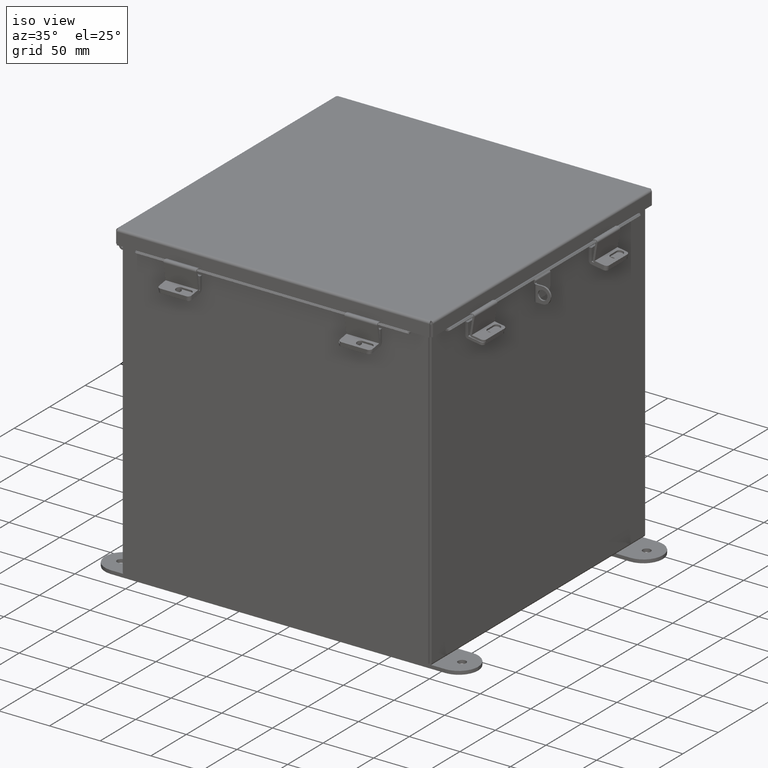
[diagram: clean part render]
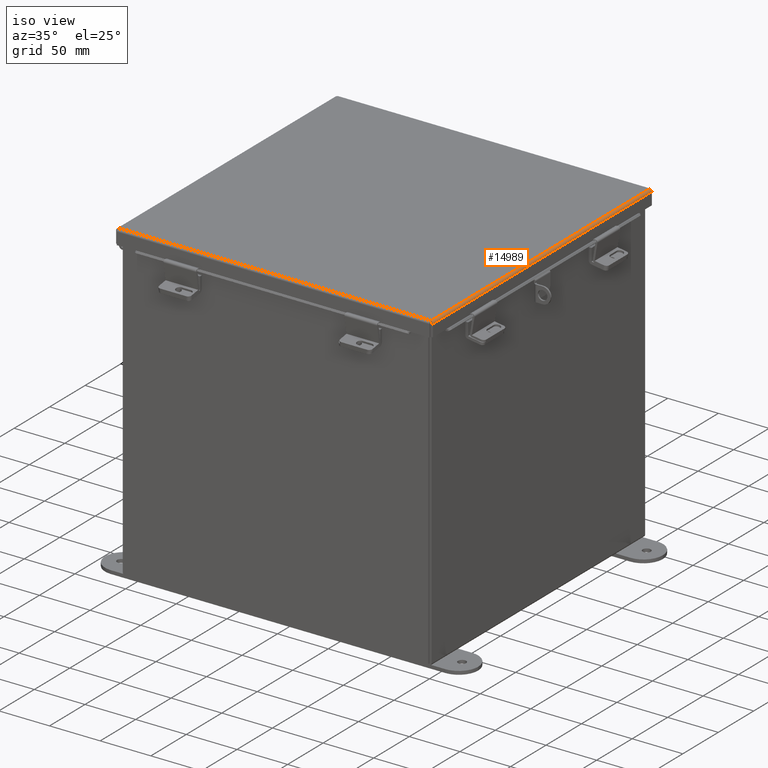
[diagram: same view with one face highlighted and labeled with its STEP entity id]
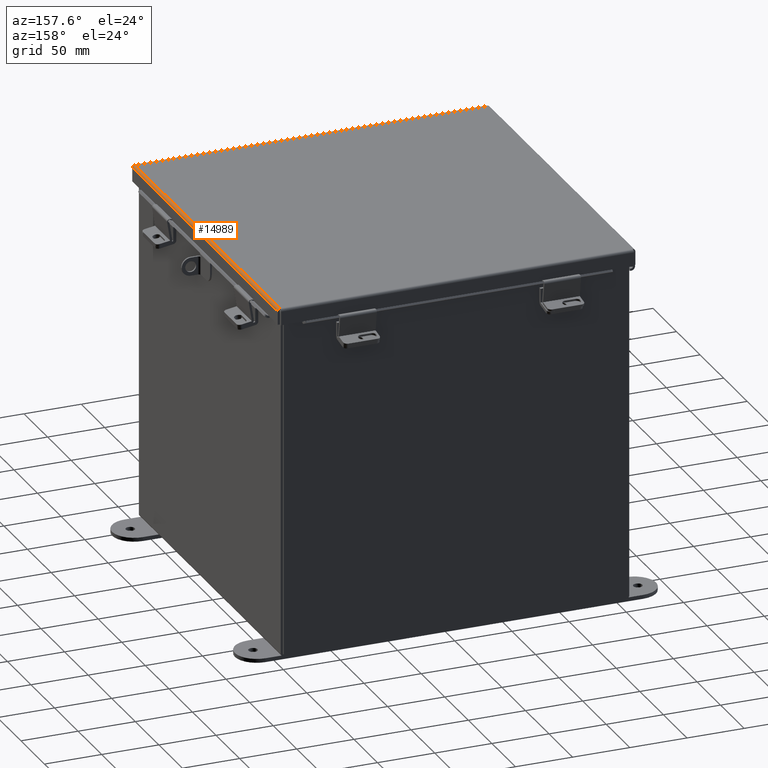
[diagram: same view with one face highlighted and labeled with its STEP entity id]
A machine part, iso view. The second image highlights one B-rep face of the part: STEP entity #14989.
A second angle (auxiliary view) of the same face is appended — the face is thin or edge-on in the first view.
In plain terms, the highlighted cylindrical surface (edge-blend (fillet) strip) has radius 2.2276 mm, axis along (-0, -1, 0).
Its self-contained STEP definition (entity closure, byte-faithful):
#234 = B_SPLINE_CURVE_WITH_KNOTS ( 'NONE', 3,
 ( #15889, #9786, #11045, #3640, #12294, #4906, #13557, #6136, #14763, #7390 ),
 .UNSPECIFIED., .F., .F.,
 ( 4, 2, 2, 2, 4 ),
 ( 0.0000000000000000000, 0.2500000000000000000, 0.5000000000000000000, 0.7500000000000000000, 1.000000000000000000 ),
 .UNSPECIFIED. ) ;
#398 = CARTESIAN_POINT ( 'NONE',  ( -6.156250000000000000, 6.074478932188137400, 0.01300000000000010700 ) ) ;
#1409 = B_SPLINE_CURVE_WITH_KNOTS ( 'NONE', 3,
 ( #8540, #7306, #11026, #3614, #12271, #4881, #13534, #6108, #14744, #7367 ),
 .UNSPECIFIED., .F., .F.,
 ( 4, 2, 2, 2, 4 ),
 ( 0.0000000000000000000, 0.2500000000000000000, 0.5000000000000000000, 0.7500000000000000000, 1.000000000000000000 ),
 .UNSPECIFIED. ) ;
#1517 = VERTEX_POINT ( 'NONE', #3948 ) ;
#1553 = VERTEX_POINT ( 'NONE', #398 ) ;
#1562 = FACE_OUTER_BOUND ( 'NONE', #2697, .T. ) ;
#1818 = DIRECTION ( 'NONE',  ( -1.000000000000000000, 0.0000000000000000000, -4.477801015840783100E-015 ) ) ;
#2677 = CARTESIAN_POINT ( 'NONE',  ( -6.068550000000000100, -6.074478932188137400, -0.07470000000000015500 ) ) ;
#2697 = EDGE_LOOP ( 'NONE', ( #11966, #3435, #15746, #7995 ) ) ;
#3026 = CARTESIAN_POINT ( 'NONE',  ( -6.068550000000000100, -6.074478932188137400, 0.01300000000000010700 ) ) ;
#3435 = ORIENTED_EDGE ( 'NONE', *, *, #10239, .F. ) ;
#3614 = CARTESIAN_POINT ( 'NONE',  ( -6.112717384578525400, 6.070526310729377400, -0.06363106625866844800 ) ) ;
#3640 = CARTESIAN_POINT ( 'NONE',  ( -6.145181066258666100, -6.072502621458756500, -0.03116738457852804100 ) ) ;
#3792 = CARTESIAN_POINT ( 'NONE',  ( -6.068550000000000100, -6.068550000000000100, -0.07470000000000015500 ) ) ;
#3948 = CARTESIAN_POINT ( 'NONE',  ( -6.068550000000000100, 6.068550000000000100, -0.07470000000000015500 ) ) ;
#4173 = VECTOR ( 'NONE', #10061, 39.37007874015748100 ) ;
#4291 = DIRECTION ( 'NONE',  ( 8.841798118918014500E-031, -1.000000000000000000, -8.874685183736382800E-031 ) ) ;
#4436 = CYLINDRICAL_SURFACE ( 'NONE', #8342, 0.08770000000000026400 ) ;
#4554 = LINE ( 'NONE', #2677, #4173 ) ;
#4881 = CARTESIAN_POINT ( 'NONE',  ( -6.138680782078321100, 6.072008543776413500, -0.04089574734180016800 ) ) ;
#4889 = CARTESIAN_POINT ( 'NONE',  ( -6.156250000000000000, 6.156249999999998200, 0.01300000000000010700 ) ) ;
#4906 = CARTESIAN_POINT ( 'NONE',  ( -6.122445747341799000, -6.071020388411725800, -0.05713078207832048700 ) ) ;
#5652 = EDGE_CURVE ( 'NONE', #1517, #1553, #1409, .T. ) ;
#5990 = EDGE_CURVE ( 'NONE', #12447, #1553, #6999, .T. ) ;
#6108 = CARTESIAN_POINT ( 'NONE',  ( -6.153967403743811500, 6.073490776823449600, -0.009955289458309110300 ) ) ;
#6136 = CARTESIAN_POINT ( 'NONE',  ( -6.091505289458309500, -6.069538155364689700, -0.07241740374381128200 ) ) ;
#6999 = LINE ( 'NONE', #4889, #10265 ) ;
#7306 = CARTESIAN_POINT ( 'NONE',  ( -6.080029903154992300, 6.069044077682344900, -0.07469999999999998900 ) ) ;
#7367 = CARTESIAN_POINT ( 'NONE',  ( -6.156250000000000000, 6.074478932188137400, 0.01300000000000010700 ) ) ;
#7390 = CARTESIAN_POINT ( 'NONE',  ( -6.068550000000000100, -6.068550000000000100, -0.07470000000000015500 ) ) ;
#7995 = ORIENTED_EDGE ( 'NONE', *, *, #5652, .F. ) ;
#8342 = AXIS2_PLACEMENT_3D ( 'NONE', #3026, #4291, #1818 ) ;
#8540 = CARTESIAN_POINT ( 'NONE',  ( -6.068550000000000100, 6.068550000000000100, -0.07470000000000015500 ) ) ;
#9786 = CARTESIAN_POINT ( 'NONE',  ( -6.156249999999999100, -6.073984854505791700, 0.001520096845007029300 ) ) ;
#10061 = DIRECTION ( 'NONE',  ( -8.841798118918014500E-031, 1.000000000000000000, 8.874685183736382800E-031 ) ) ;
#10239 = EDGE_CURVE ( 'NONE', #12447, #12074, #234, .T. ) ;
#10265 = VECTOR ( 'NONE', #14749, 39.37007874015748100 ) ;
#11026 = CARTESIAN_POINT ( 'NONE',  ( -6.091505289458310400, 6.069538155364688800, -0.07241740374381128200 ) ) ;
#11045 = CARTESIAN_POINT ( 'NONE',  ( -6.153967403743811500, -6.073490776823450500, -0.009955289458309113700 ) ) ;
#11966 = ORIENTED_EDGE ( 'NONE', *, *, #12118, .F. ) ;
#12074 = VERTEX_POINT ( 'NONE', #3792 ) ;
#12118 = EDGE_CURVE ( 'NONE', #12074, #1517, #4554, .T. ) ;
#12271 = CARTESIAN_POINT ( 'NONE',  ( -6.122445747341799900, 6.071020388411724000, -0.05713078207832046600 ) ) ;
#12294 = CARTESIAN_POINT ( 'NONE',  ( -6.138680782078321100, -6.072008543776413500, -0.04089574734180016800 ) ) ;
#12447 = VERTEX_POINT ( 'NONE', #13140 ) ;
#13140 = CARTESIAN_POINT ( 'NONE',  ( -6.156250000000000000, -6.074478932188137400, 0.01300000000000010700 ) ) ;
#13534 = CARTESIAN_POINT ( 'NONE',  ( -6.145181066258667900, 6.072502621458759200, -0.03116738457852804800 ) ) ;
#13557 = CARTESIAN_POINT ( 'NONE',  ( -6.112717384578528100, -6.070526310729379200, -0.06363106625866843400 ) ) ;
#14744 = CARTESIAN_POINT ( 'NONE',  ( -6.156250000000000000, 6.073984854505791700, 0.001520096845007032300 ) ) ;
#14749 = DIRECTION ( 'NONE',  ( -8.841798118918014500E-031, 1.000000000000000000, 8.874685183736382800E-031 ) ) ;
#14763 = CARTESIAN_POINT ( 'NONE',  ( -6.080029903154993100, -6.069044077682344900, -0.07469999999999998900 ) ) ;
#14989 = ADVANCED_FACE ( 'NONE', ( #1562 ), #4436, .T. ) ;
#15746 = ORIENTED_EDGE ( 'NONE', *, *, #5990, .T. ) ;
#15889 = CARTESIAN_POINT ( 'NONE',  ( -6.156250000000000000, -6.074478932188137400, 0.01300000000000010700 ) ) ;